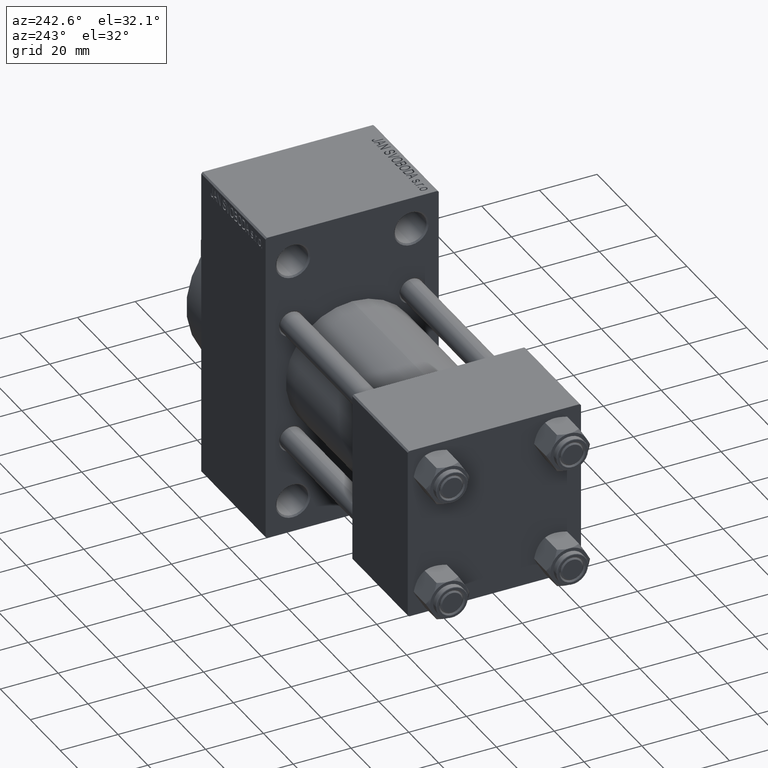
[diagram: clean part render]
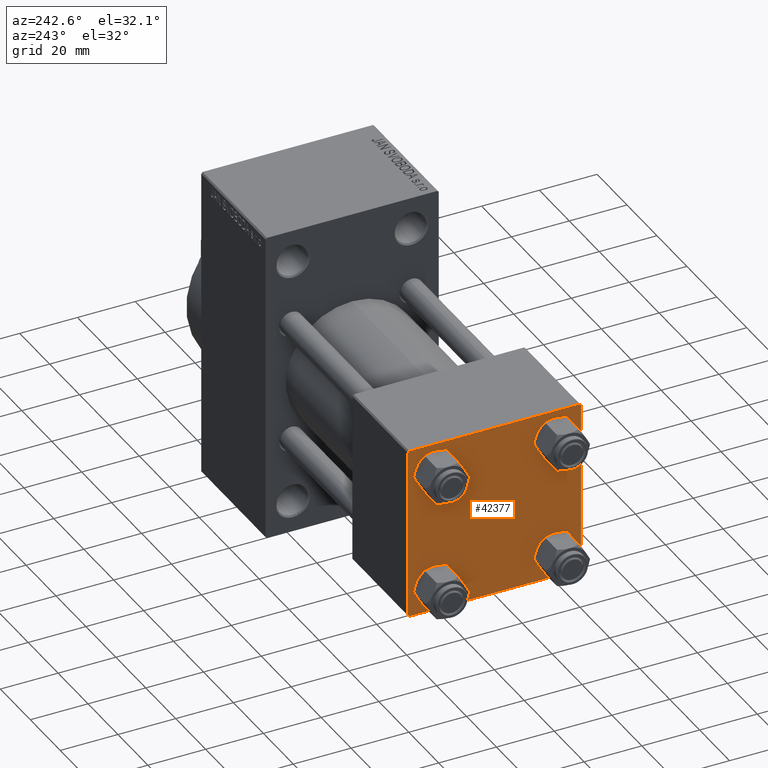
[diagram: same view with one face highlighted and labeled with its STEP entity id]
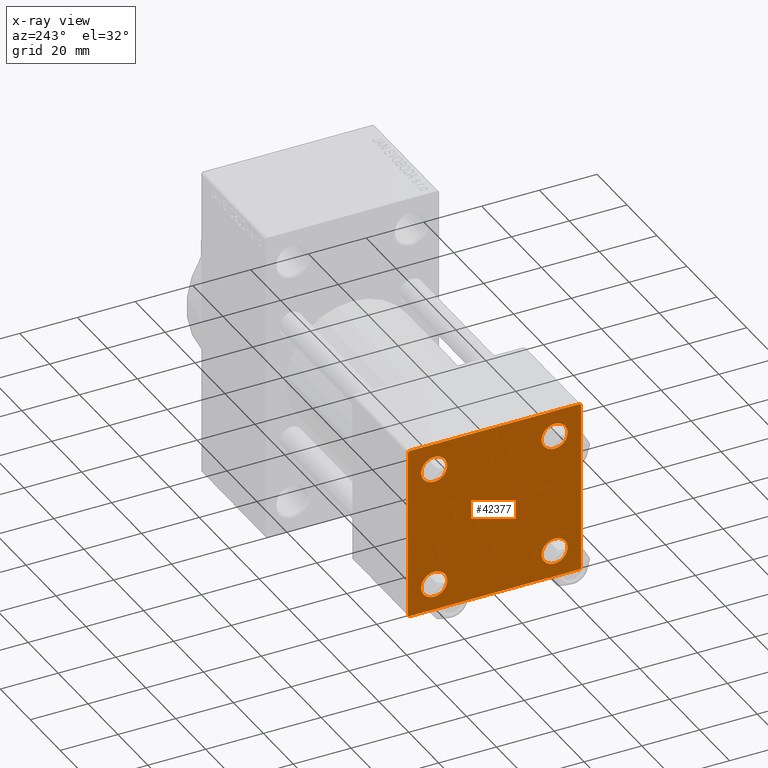
[diagram: x-ray of the same camera — body ghosted, the highlighted face saturated]
A machine part, auxiliary view. The second image highlights one B-rep face of the part: STEP entity #42377.
The next image is the same camera in x-ray: the body ghosted, the highlighted face saturated — about 0% of this face is hidden behind the body in this view.
In plain terms, the highlighted planar face has unit normal (-1, 0, 0).
Its self-contained STEP definition (entity closure, byte-faithful):
#480 = LINE ( 'NONE', #45611, #10611 ) ;
#522 = CARTESIAN_POINT ( 'NONE',  ( 0.000000000000000000, -30.00000000000000000, 29.49999999999999289 ) ) ;
#557 = VERTEX_POINT ( 'NONE', #43737 ) ;
#996 = EDGE_LOOP ( 'NONE', ( #31401, #4795 ) ) ;
#1496 = VECTOR ( 'NONE', #42624, 1000.000000000000000 ) ;
#1629 = CARTESIAN_POINT ( 'NONE',  ( 0.000000000000000000, -30.00000000000000000, 29.99999999999999289 ) ) ;
#2428 = VERTEX_POINT ( 'NONE', #28804 ) ;
#2474 = VERTEX_POINT ( 'NONE', #25299 ) ;
#3165 = EDGE_CURVE ( 'NONE', #40934, #2474, #41477, .T. ) ;
#3197 = AXIS2_PLACEMENT_3D ( 'NONE', #33237, #32992, #10323 ) ;
#3516 = CARTESIAN_POINT ( 'NONE',  ( 0.000000000000000000, 20.84999999999999787, -16.34999999999998366 ) ) ;
#4136 = EDGE_CURVE ( 'NONE', #10353, #15659, #43502, .T. ) ;
#4768 = CARTESIAN_POINT ( 'NONE',  ( 0.000000000000000000, 0.000000000000000000, 0.000000000000000000 ) ) ;
#4795 = ORIENTED_EDGE ( 'NONE', *, *, #19676, .T. ) ;
#4973 = CARTESIAN_POINT ( 'NONE',  ( 0.000000000000000000, -30.00000000000000000, -29.50000000000001776 ) ) ;
#5014 = FACE_BOUND ( 'NONE', #46526, .T. ) ;
#5792 = ORIENTED_EDGE ( 'NONE', *, *, #3165, .T. ) ;
#6602 = CIRCLE ( 'NONE', #28920, 4.500000000000017764 ) ;
#6619 = EDGE_LOOP ( 'NONE', ( #32344, #11241, #27438, #32106, #29858, #20519, #38194, #5792 ) ) ;
#7402 = AXIS2_PLACEMENT_3D ( 'NONE', #4768, #16479, #9237 ) ;
#7525 = ORIENTED_EDGE ( 'NONE', *, *, #25300, .T. ) ;
#7532 = VERTEX_POINT ( 'NONE', #7908 ) ;
#7730 = CARTESIAN_POINT ( 'NONE',  ( 0.000000000000000000, 29.99999999999999289, -30.00000000000000000 ) ) ;
#7908 = CARTESIAN_POINT ( 'NONE',  ( 0.000000000000000000, -20.84999999999999076, -25.35000000000002274 ) ) ;
#8078 = LINE ( 'NONE', #26049, #14562 ) ;
#8435 = DIRECTION ( 'NONE',  ( 1.000000000000000000, -0.000000000000000000, 0.000000000000000000 ) ) ;
#8495 = DIRECTION ( 'NONE',  ( 1.000000000000000000, -0.000000000000000000, 0.000000000000000000 ) ) ;
#9197 = DIRECTION ( 'NONE',  ( 0.000000000000000000, 0.000000000000000000, 1.000000000000000000 ) ) ;
#9237 = DIRECTION ( 'NONE',  ( -0.000000000000000000, 0.000000000000000000, 1.000000000000000000 ) ) ;
#9520 = VERTEX_POINT ( 'NONE', #22479 ) ;
#9996 = EDGE_LOOP ( 'NONE', ( #14007, #44437 ) ) ;
#10323 = DIRECTION ( 'NONE',  ( 0.000000000000000000, 0.000000000000000000, 1.000000000000000000 ) ) ;
#10353 = VERTEX_POINT ( 'NONE', #522 ) ;
#10611 = VECTOR ( 'NONE', #34618, 1000.000000000000000 ) ;
#11095 = DIRECTION ( 'NONE',  ( 0.000000000000000000, 0.000000000000000000, 1.000000000000000000 ) ) ;
#11241 = ORIENTED_EDGE ( 'NONE', *, *, #15955, .T. ) ;
#11267 = CARTESIAN_POINT ( 'NONE',  ( 0.000000000000000000, 20.84999999999999787, -20.85000000000000142 ) ) ;
#11965 = AXIS2_PLACEMENT_3D ( 'NONE', #11267, #41183, #34184 ) ;
#13036 = EDGE_CURVE ( 'NONE', #26295, #7532, #47782, .T. ) ;
#13336 = DIRECTION ( 'NONE',  ( 0.000000000000000000, 0.000000000000000000, -1.000000000000000000 ) ) ;
#13421 = LINE ( 'NONE', #20897, #20690 ) ;
#13628 = VECTOR ( 'NONE', #29389, 999.9999999999998863 ) ;
#13684 = ORIENTED_EDGE ( 'NONE', *, *, #44276, .T. ) ;
#14007 = ORIENTED_EDGE ( 'NONE', *, *, #42367, .T. ) ;
#14187 = CARTESIAN_POINT ( 'NONE',  ( 0.000000000000000000, 29.74999999999957723, -29.75000000000040501 ) ) ;
#14562 = VECTOR ( 'NONE', #34252, 1000.000000000000114 ) ;
#14714 = DIRECTION ( 'NONE',  ( 1.000000000000000000, -0.000000000000000000, 0.000000000000000000 ) ) ;
#15659 = VERTEX_POINT ( 'NONE', #4973 ) ;
#15724 = VERTEX_POINT ( 'NONE', #40108 ) ;
#15955 = EDGE_CURVE ( 'NONE', #28975, #557, #48331, .T. ) ;
#16183 = DIRECTION ( 'NONE',  ( 0.000000000000000000, 0.000000000000000000, 1.000000000000000000 ) ) ;
#16479 = DIRECTION ( 'NONE',  ( -1.000000000000000000, 0.000000000000000000, -0.000000000000000000 ) ) ;
#17250 = CIRCLE ( 'NONE', #32380, 4.500000000000017764 ) ;
#17819 = CARTESIAN_POINT ( 'NONE',  ( 0.000000000000000000, 29.99999999999999289, 30.00000000000000000 ) ) ;
#18275 = EDGE_LOOP ( 'NONE', ( #27023, #13684 ) ) ;
#18347 = CARTESIAN_POINT ( 'NONE',  ( 0.000000000000000000, 20.84999999999999787, 20.85000000000000142 ) ) ;
#18498 = VERTEX_POINT ( 'NONE', #43085 ) ;
#18943 = EDGE_CURVE ( 'NONE', #27809, #15659, #8078, .T. ) ;
#19676 = EDGE_CURVE ( 'NONE', #42363, #24669, #46287, .T. ) ;
#19952 = CARTESIAN_POINT ( 'NONE',  ( 0.000000000000000000, 20.84999999999999787, 20.85000000000000142 ) ) ;
#20519 = ORIENTED_EDGE ( 'NONE', *, *, #40533, .T. ) ;
#20661 = CIRCLE ( 'NONE', #30219, 4.500000000000017764 ) ;
#20690 = VECTOR ( 'NONE', #36099, 1000.000000000000114 ) ;
#20897 = CARTESIAN_POINT ( 'NONE',  ( -0.000000000000000000, -29.74999999999999645, 29.74999999999999645 ) ) ;
#21298 = LINE ( 'NONE', #17819, #23708 ) ;
#22415 = AXIS2_PLACEMENT_3D ( 'NONE', #18347, #33521, #11095 ) ;
#22479 = CARTESIAN_POINT ( 'NONE',  ( 0.000000000000000000, 20.84999999999999787, -25.35000000000001918 ) ) ;
#23102 = CIRCLE ( 'NONE', #11965, 4.500000000000017764 ) ;
#23121 = CARTESIAN_POINT ( 'NONE',  ( 0.000000000000000000, 29.99999999999999289, -29.50000000000000000 ) ) ;
#23708 = VECTOR ( 'NONE', #13336, 1000.000000000000000 ) ;
#23711 = FACE_BOUND ( 'NONE', #996, .T. ) ;
#24669 = VERTEX_POINT ( 'NONE', #48543 ) ;
#24754 = ORIENTED_EDGE ( 'NONE', *, *, #42763, .T. ) ;
#25299 = CARTESIAN_POINT ( 'NONE',  ( 0.000000000000000000, 29.99999999999999289, 29.50000000000000000 ) ) ;
#25300 = EDGE_CURVE ( 'NONE', #2428, #15724, #20661, .T. ) ;
#26049 = CARTESIAN_POINT ( 'NONE',  ( 0.000000000000000000, -29.75000000000001066, -29.75000000000001066 ) ) ;
#26295 = VERTEX_POINT ( 'NONE', #48148 ) ;
#27023 = ORIENTED_EDGE ( 'NONE', *, *, #13036, .T. ) ;
#27262 = CARTESIAN_POINT ( 'NONE',  ( 0.000000000000000000, 29.74999999999999645, 29.74999999999999645 ) ) ;
#27438 = ORIENTED_EDGE ( 'NONE', *, *, #39669, .T. ) ;
#27676 = VECTOR ( 'NONE', #32513, 1000.000000000000000 ) ;
#27693 = CARTESIAN_POINT ( 'NONE',  ( 0.000000000000000000, 20.84999999999999787, 16.34999999999998366 ) ) ;
#27809 = VERTEX_POINT ( 'NONE', #35276 ) ;
#28157 = DIRECTION ( 'NONE',  ( 1.000000000000000000, -0.000000000000000000, 0.000000000000000000 ) ) ;
#28429 = VECTOR ( 'NONE', #49201, 1000.000000000000114 ) ;
#28804 = CARTESIAN_POINT ( 'NONE',  ( 0.000000000000000000, -20.84999999999999076, 25.35000000000002274 ) ) ;
#28920 = AXIS2_PLACEMENT_3D ( 'NONE', #42655, #8495, #35920 ) ;
#28975 = VERTEX_POINT ( 'NONE', #23121 ) ;
#29389 = DIRECTION ( 'NONE',  ( -0.000000000000000000, -0.7071067811865574537, -0.7071067811865376918 ) ) ;
#29858 = ORIENTED_EDGE ( 'NONE', *, *, #4136, .F. ) ;
#29901 = DIRECTION ( 'NONE',  ( 0.000000000000000000, 0.000000000000000000, 1.000000000000000000 ) ) ;
#30219 = AXIS2_PLACEMENT_3D ( 'NONE', #48856, #14714, #29901 ) ;
#31401 = ORIENTED_EDGE ( 'NONE', *, *, #31753, .T. ) ;
#31660 = FACE_BOUND ( 'NONE', #9996, .T. ) ;
#31753 = EDGE_CURVE ( 'NONE', #24669, #42363, #17250, .T. ) ;
#32094 = CIRCLE ( 'NONE', #43236, 4.500000000000017764 ) ;
#32106 = ORIENTED_EDGE ( 'NONE', *, *, #18943, .T. ) ;
#32122 = DIRECTION ( 'NONE',  ( 1.000000000000000000, -0.000000000000000000, 0.000000000000000000 ) ) ;
#32344 = ORIENTED_EDGE ( 'NONE', *, *, #33438, .T. ) ;
#32380 = AXIS2_PLACEMENT_3D ( 'NONE', #19952, #32122, #9197 ) ;
#32513 = DIRECTION ( 'NONE',  ( 0.000000000000000000, 0.000000000000000000, -1.000000000000000000 ) ) ;
#32791 = CIRCLE ( 'NONE', #46345, 4.500000000000017764 ) ;
#32992 = DIRECTION ( 'NONE',  ( 1.000000000000000000, -0.000000000000000000, 0.000000000000000000 ) ) ;
#33237 = CARTESIAN_POINT ( 'NONE',  ( 0.000000000000000000, -20.84999999999999076, -20.85000000000000497 ) ) ;
#33438 = EDGE_CURVE ( 'NONE', #2474, #28975, #21298, .T. ) ;
#33521 = DIRECTION ( 'NONE',  ( 1.000000000000000000, -0.000000000000000000, 0.000000000000000000 ) ) ;
#34184 = DIRECTION ( 'NONE',  ( 0.000000000000000000, 0.000000000000000000, 1.000000000000000000 ) ) ;
#34252 = DIRECTION ( 'NONE',  ( 0.000000000000000000, -0.7071067811865474617, 0.7071067811865474617 ) ) ;
#34618 = DIRECTION ( 'NONE',  ( 0.000000000000000000, -1.000000000000000000, -1.156482317317871725E-16 ) ) ;
#34897 = LINE ( 'NONE', #7730, #1496 ) ;
#35276 = CARTESIAN_POINT ( 'NONE',  ( 0.000000000000000000, -29.50000000000000000, -30.00000000000000711 ) ) ;
#35920 = DIRECTION ( 'NONE',  ( 0.000000000000000000, 0.000000000000000000, 1.000000000000000000 ) ) ;
#36099 = DIRECTION ( 'NONE',  ( -0.000000000000000000, 0.7071067811865474617, 0.7071067811865474617 ) ) ;
#36132 = DIRECTION ( 'NONE',  ( 0.000000000000000000, 0.000000000000000000, 1.000000000000000000 ) ) ;
#38194 = ORIENTED_EDGE ( 'NONE', *, *, #42526, .F. ) ;
#38922 = PLANE ( 'NONE',  #7402 ) ;
#39669 = EDGE_CURVE ( 'NONE', #557, #27809, #34897, .T. ) ;
#40108 = CARTESIAN_POINT ( 'NONE',  ( 0.000000000000000000, -20.84999999999999076, 16.34999999999998721 ) ) ;
#40533 = EDGE_CURVE ( 'NONE', #10353, #18498, #13421, .T. ) ;
#40934 = VERTEX_POINT ( 'NONE', #43503 ) ;
#41183 = DIRECTION ( 'NONE',  ( 1.000000000000000000, -0.000000000000000000, 0.000000000000000000 ) ) ;
#41468 = EDGE_CURVE ( 'NONE', #9520, #44101, #23102, .T. ) ;
#41477 = LINE ( 'NONE', #27262, #28429 ) ;
#42363 = VERTEX_POINT ( 'NONE', #27693 ) ;
#42367 = EDGE_CURVE ( 'NONE', #44101, #9520, #6602, .T. ) ;
#42377 = ADVANCED_FACE ( 'NONE', ( #5014, #42904, #31660, #23711, #43390 ), #38922, .T. ) ;
#42526 = EDGE_CURVE ( 'NONE', #40934, #18498, #480, .T. ) ;
#42600 = CARTESIAN_POINT ( 'NONE',  ( 0.000000000000000000, -20.84999999999999076, 20.85000000000000497 ) ) ;
#42624 = DIRECTION ( 'NONE',  ( 0.000000000000000000, -1.000000000000000000, -1.156482317317871725E-16 ) ) ;
#42655 = CARTESIAN_POINT ( 'NONE',  ( 0.000000000000000000, 20.84999999999999787, -20.85000000000000142 ) ) ;
#42763 = EDGE_CURVE ( 'NONE', #15724, #2428, #32094, .T. ) ;
#42904 = FACE_BOUND ( 'NONE', #18275, .T. ) ;
#43085 = CARTESIAN_POINT ( 'NONE',  ( 0.000000000000000000, -29.49999999999998579, 29.99999999999999289 ) ) ;
#43236 = AXIS2_PLACEMENT_3D ( 'NONE', #42600, #8435, #16183 ) ;
#43390 = FACE_OUTER_BOUND ( 'NONE', #6619, .T. ) ;
#43502 = LINE ( 'NONE', #1629, #27676 ) ;
#43503 = CARTESIAN_POINT ( 'NONE',  ( 0.000000000000000000, 29.49999999999999289, 30.00000000000000000 ) ) ;
#43737 = CARTESIAN_POINT ( 'NONE',  ( 0.000000000000000000, 29.49999999999997868, -30.00000000000000000 ) ) ;
#44101 = VERTEX_POINT ( 'NONE', #3516 ) ;
#44276 = EDGE_CURVE ( 'NONE', #7532, #26295, #32791, .T. ) ;
#44437 = ORIENTED_EDGE ( 'NONE', *, *, #41468, .T. ) ;
#45611 = CARTESIAN_POINT ( 'NONE',  ( 0.000000000000000000, 29.99999999999999289, 30.00000000000000000 ) ) ;
#46287 = CIRCLE ( 'NONE', #22415, 4.500000000000017764 ) ;
#46345 = AXIS2_PLACEMENT_3D ( 'NONE', #47111, #28157, #36132 ) ;
#46526 = EDGE_LOOP ( 'NONE', ( #7525, #24754 ) ) ;
#47111 = CARTESIAN_POINT ( 'NONE',  ( 0.000000000000000000, -20.84999999999999076, -20.85000000000000497 ) ) ;
#47782 = CIRCLE ( 'NONE', #3197, 4.500000000000017764 ) ;
#48148 = CARTESIAN_POINT ( 'NONE',  ( 0.000000000000000000, -20.84999999999999076, -16.34999999999998721 ) ) ;
#48331 = LINE ( 'NONE', #14187, #13628 ) ;
#48543 = CARTESIAN_POINT ( 'NONE',  ( 0.000000000000000000, 20.84999999999999787, 25.35000000000001918 ) ) ;
#48856 = CARTESIAN_POINT ( 'NONE',  ( 0.000000000000000000, -20.84999999999999076, 20.85000000000000497 ) ) ;
#49201 = DIRECTION ( 'NONE',  ( 0.000000000000000000, 0.7071067811865474617, -0.7071067811865474617 ) ) ;